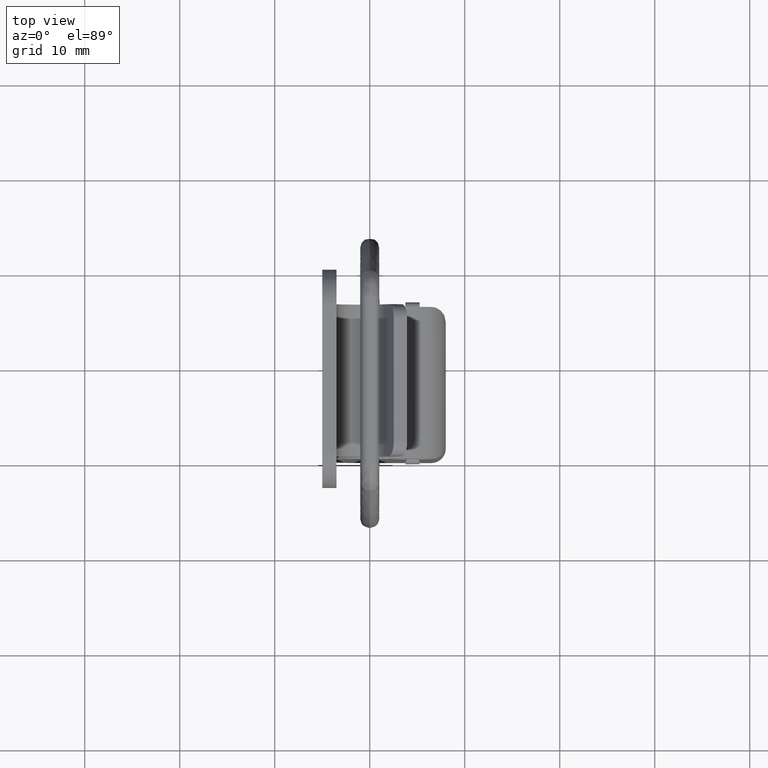
[diagram: clean part render]
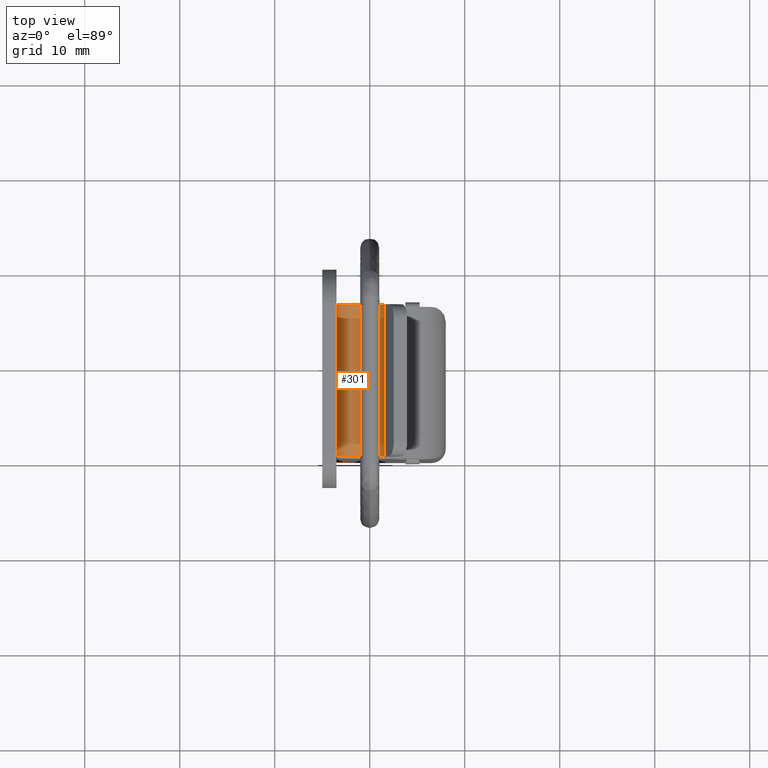
[diagram: same view with one face highlighted and labeled with its STEP entity id]
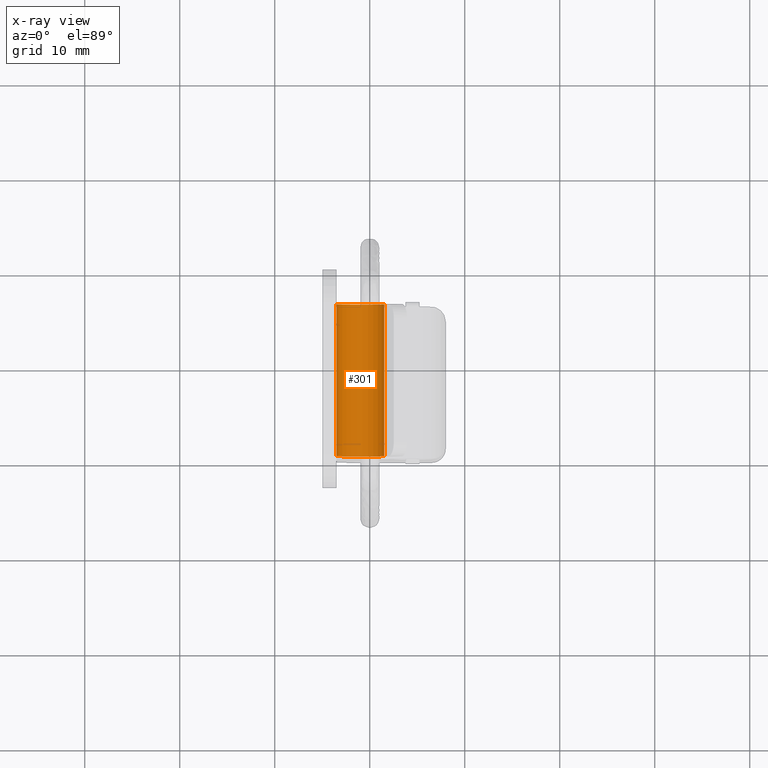
[diagram: x-ray of the same camera — body ghosted, the highlighted face saturated]
A machine part, top view. The second image highlights one B-rep face of the part: STEP entity #301.
The next image is the same camera in x-ray: the body ghosted, the highlighted face saturated — about 0% of this face is hidden behind the body in this view.
In plain terms, the highlighted cylindrical surface (edge-blend (fillet) strip) has radius 2.6 mm, axis along (0, 1, 0).
Its self-contained STEP definition (entity closure, byte-faithful):
#301=ADVANCED_FACE('',(#1477),#1476,.F.);
#1476=CYLINDRICAL_SURFACE('',#2368,2.60000000000E+00);
#1477=FACE_OUTER_BOUND('',#2369,.T.);
#2365=CARTESIAN_POINT('',(0.00000000000E+00,-2.60000000000E+00,-7.89883167429E+00));
#2366=DIRECTION('',(1.00000000000E+00,-0.00000000000E+00,-0.00000000000E+00));
#2367=DIRECTION('',(0.00000000000E+00,-1.73648177667E-01,9.84807753012E-01));
#2368=AXIS2_PLACEMENT_3D('',#2365,#2366,#2367);
#2369=EDGE_LOOP('',(#3058,#3059,#3060,#3061));
#3058=ORIENTED_EDGE('',*,*,#3450,.F.);
#3059=ORIENTED_EDGE('',*,*,#3451,.F.);
#3060=ORIENTED_EDGE('',*,*,#3429,.F.);
#3061=ORIENTED_EDGE('',*,*,#3440,.F.);
#3429=EDGE_CURVE('',#5517,#5482,#5524,.T.);
#3440=EDGE_CURVE('',#5592,#5517,#5600,.T.);
#3450=EDGE_CURVE('',#5668,#5592,#5669,.T.);
#3451=EDGE_CURVE('',#5482,#5668,#5675,.T.);
#5482=VERTEX_POINT('',#7083);
#5517=VERTEX_POINT('',#7102);
#5524=CIRCLE('',#7108,2.60000000000E+00);
#5592=VERTEX_POINT('',#7151);
#5600=LINE('',#7155,#7156);
#5668=VERTEX_POINT('',#7203);
#5669=CIRCLE('',#7207,2.60000000000E+00);
#5675=LINE('',#7208,#7209);
#7083=CARTESIAN_POINT('',(-2.18847162614E-11,-5.02949777282E+00,-8.82486653965E+00));
#7102=CARTESIAN_POINT('',(-2.18847162614E-11,0.00000000000E+00,-7.89883167429E+00));
#7105=CARTESIAN_POINT('',(-2.18847162614E-11,-2.60000000000E+00,-7.89883167429E+00));
#7106=DIRECTION('',(-1.00000000000E+00,0.00000000000E+00,0.00000000000E+00));
#7107=DIRECTION('',(0.00000000000E+00,1.00000000000E+00,1.83690953073E-16));
#7108=AXIS2_PLACEMENT_3D('',#7105,#7106,#7107);
#7151=CARTESIAN_POINT('',(-1.60000000000E+01,0.00000000000E+00,-7.89883167429E+00));
#7155=CARTESIAN_POINT('',(-1.60000000000E+01,0.00000000000E+00,-7.89883167429E+00));
#7156=VECTOR('',#7157,1.60000000000E+01);
#7157=DIRECTION('',(1.00000000000E+00,0.00000000000E+00,0.00000000000E+00));
#7203=CARTESIAN_POINT('',(-1.60000000000E+01,-5.02949777282E+00,-8.82486653965E+00));
#7204=CARTESIAN_POINT('',(-1.60000000000E+01,-2.60000000000E+00,-7.89883167429E+00));
#7205=DIRECTION('',(1.00000000000E+00,0.00000000000E+00,1.56298585186E-12));
#7206=DIRECTION('',(-1.56298585186E-12,-0.00000000000E+00,1.00000000000E+00));
#7207=AXIS2_PLACEMENT_3D('',#7204,#7205,#7206);
#7208=CARTESIAN_POINT('',(-2.18278728426E-11,-5.02949777282E+00,-8.82486653965E+00));
#7209=VECTOR('',#7210,1.60000000000E+01);
#7210=DIRECTION('',(-1.00000000000E+00,0.00000000000E+00,0.00000000000E+00));